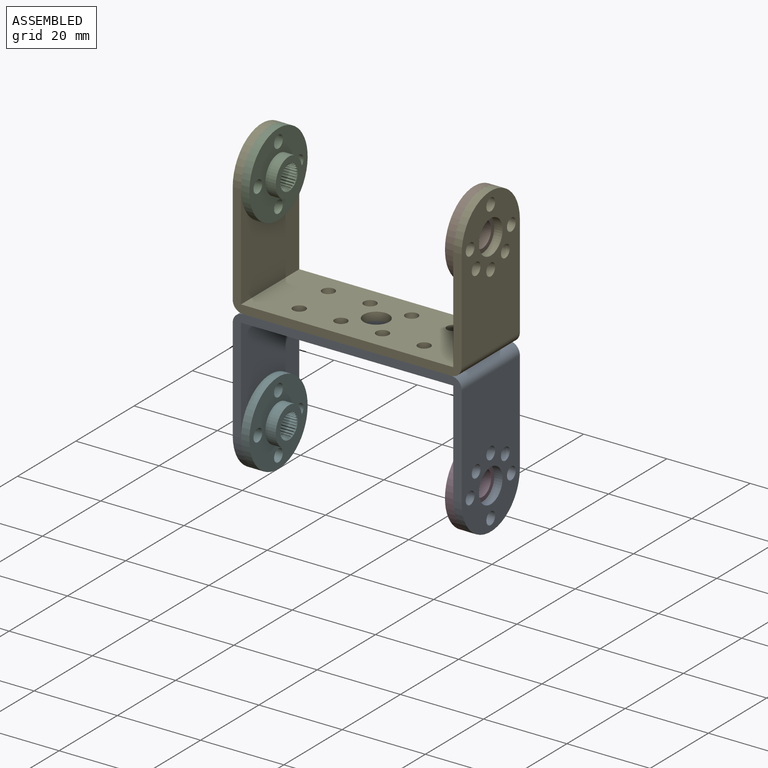
[diagram: assembled view]
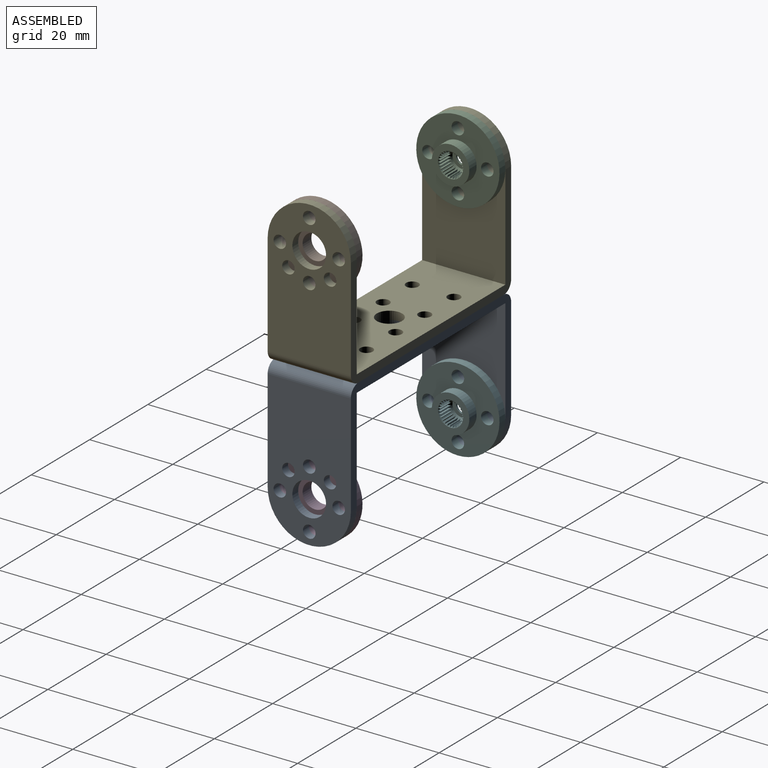
[diagram: assembled view, second angle]
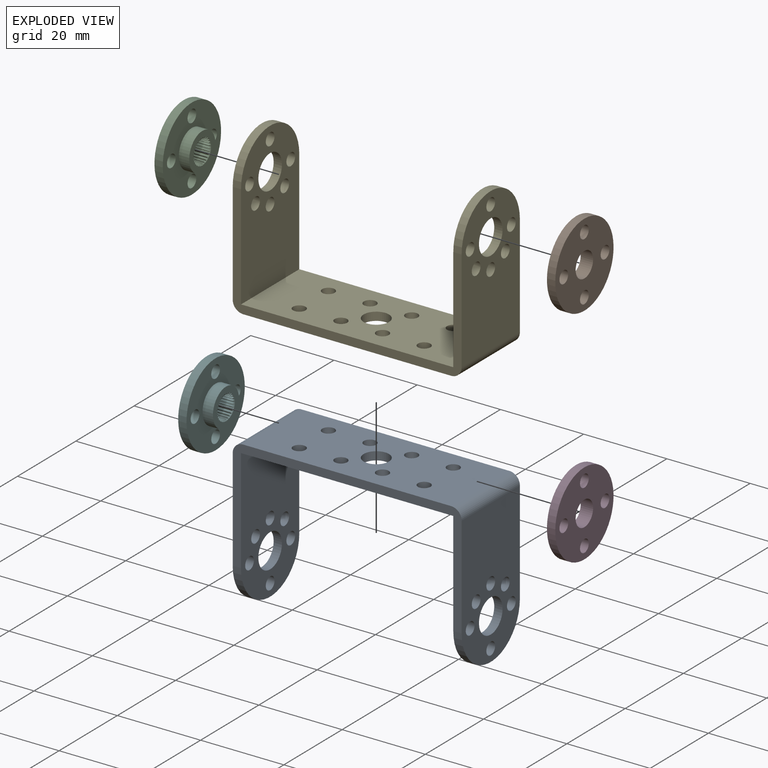
[diagram: exploded view]
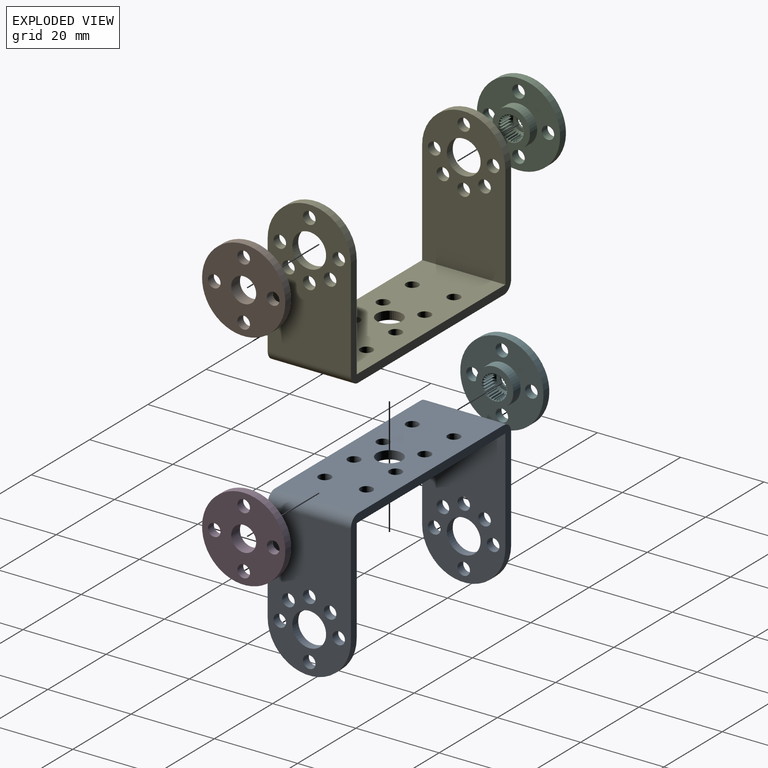
[diagram: exploded view, second angle]
ASSEMBLY  parts=6 mates=5
PART A: 35 faces, bbox 55x20x37 mm
  f0: plane 55x27mm, normal (0,1,0), area 207.3mm2, adj f2,f3,f4,f5,f6,f7,f8,f9
  f1: plane 55x27mm, normal (0,-1,0), area 207.3mm2, adj f2,f3,f4,f5,f6,f7,f8,f9
  f2: plane 35x20mm, normal (-1,0,0), area 563.1mm2, adj f0,f1,f3,f9,f16,f23,f24,f25
  f3: plane 51x20mm, normal (0,0,-1), area 934.2mm2, adj f0,f1,f2,f4,f10,f11,f12,f13
  f4: plane 35x20mm, normal (1,0,0), area 563.1mm2, adj f0,f1,f3,f8,f15,f17,f18,f19
  f5: plane 34.5x20mm, normal (1,0,0), area 553.1mm2, adj f0,f1,f9,f16,f23,f24,f25,f26
  f6: plane 50x20mm, normal (0,0,1), area 914.2mm2, adj f0,f1,f10,f11,f12,f13,f14,f29
  f7: plane 34.5x20mm, normal (-1,0,0), area 553.1mm2, adj f0,f1,f8,f15,f17,f18,f19,f20
  f8: cylinder r=10mm len=20mm, axis (-1,0,0), area 62.8mm2, adj f0,f1,f4,f7
  f9: cylinder r=10mm len=20mm, axis (1,0,0), area 62.8mm2, adj f0,f1,f2,f5
  f10: cylinder r=3.05mm len=6.1mm, axis (0,0,-1), area 38.3mm2, adj f3,f6
  f11: cylinder r=1.5mm len=3mm, axis (0,0,-1), area 18.8mm2, adj f3,f6
  f12: cylinder r=1.5mm len=3mm, axis (0,0,-1), area 18.8mm2, adj f3,f6
  f13: cylinder r=1.5mm len=3mm, axis (0,0,-1), area 18.8mm2, adj f3,f6
  f14: cylinder r=1.5mm len=3mm, axis (0,0,-1), area 18.8mm2, adj f3,f6
  f15: cylinder r=4.05mm len=8.1mm, axis (1,0,0), area 50.9mm2, adj f4,f7
  f16: cylinder r=4.05mm len=8.1mm, axis (1,0,0), area 50.9mm2, adj f2,f5
  f17: cylinder r=1.5mm len=3mm, axis (1,0,0), area 18.8mm2, adj f4,f7
  f18: cylinder r=1.5mm len=3mm, axis (1,0,0), area 18.8mm2, adj f4,f7
  f19: cylinder r=1.5mm len=3mm, axis (1,0,0), area 18.8mm2, adj f4,f7
  f20: cylinder r=1.5mm len=3mm, axis (1,0,0), area 18.8mm2, adj f4,f7
  f21: cylinder r=1.5mm len=3mm, axis (1,0,0), area 18.8mm2, adj f4,f7
  f22: cylinder r=1.5mm len=3mm, axis (1,0,0), area 18.8mm2, adj f4,f7
  f23: cylinder r=1.5mm len=3mm, axis (1,0,0), area 18.8mm2, adj f2,f5
  f24: cylinder r=1.5mm len=3mm, axis (1,0,0), area 18.8mm2, adj f2,f5
  f25: cylinder r=1.5mm len=3mm, axis (1,0,0), area 18.8mm2, adj f2,f5
  f26: cylinder r=1.5mm len=3mm, axis (1,0,0), area 18.8mm2, adj f2,f5
  f27: cylinder r=1.5mm len=3mm, axis (1,0,0), area 18.8mm2, adj f2,f5
  f28: cylinder r=1.5mm len=3mm, axis (1,0,0), area 18.8mm2, adj f2,f5
  f29: cylinder r=2.5mm len=20mm, axis (0,-1,0), area 78.5mm2, adj f0,f1,f5,f6
  f30: cylinder r=2.5mm len=20mm, axis (0,-1,0), area 78.5mm2, adj f0,f1,f6,f7
  f31: cylinder r=1.5mm len=3mm, axis (0,0,-1), area 18.8mm2, adj f3,f6
  f32: cylinder r=1.5mm len=3mm, axis (0,0,-1), area 18.8mm2, adj f3,f6
  f33: cylinder r=1.5mm len=3mm, axis (0,0,-1), area 18.8mm2, adj f3,f6
  f34: cylinder r=1.5mm len=3mm, axis (0,0,-1), area 18.8mm2, adj f3,f6
PART B: 10 faces, bbox 20x20x3 mm
  f0: cylinder r=4.5mm len=9mm, axis (0,0,-1), area 28.3mm2, adj f1,f5
  f1: plane 9x9mm, normal (0,0,-1), area 35.3mm2, adj f0,f2
  f2: cylinder r=3mm len=6mm, axis (0,0,-1), area 56.5mm2, adj f1,f3
  f3: plane 20x20mm, normal (0,0,1), area 257.6mm2, adj f2,f4,f6,f7,f8,f9
  f4: cylinder r=10mm len=20mm, axis (0,0,-1), area 125.7mm2, adj f3,f5
  f5: plane 20x20mm, normal (0,0,-1), area 222.3mm2, adj f0,f4,f6,f7,f8,f9
  f6: cylinder r=1.5mm len=3mm, axis (0,0,-1), area 18.8mm2, adj f3,f5
  f7: cylinder r=1.5mm len=3mm, axis (0,0,-1), area 18.8mm2, adj f3,f5
  f8: cylinder r=1.5mm len=3mm, axis (0,0,-1), area 18.8mm2, adj f3,f5
  f9: cylinder r=1.5mm len=3mm, axis (0,0,-1), area 18.8mm2, adj f3,f5
PART C: 152 faces, bbox 20x20x4.5 mm
  f0: plane 20x20mm, normal (0,0,1), area 278.8mm2, adj f1,f5,f6,f7,f8,f11
  f1: cylinder r=10mm len=20mm, axis (0,0,-1), area 125.7mm2, adj f0,f2
  f2: plane 20x20mm, normal (0,0,-1), area 222.3mm2, adj f1,f3,f5,f6,f7,f8
  f3: cylinder r=4.5mm len=9mm, axis (0,0,-1), area 70.7mm2, adj f2,f4
  f4: plane 9x9mm, normal (0,0,-1), area 35.3mm2, adj f3,f10,f15,f18,f21,f24,f27,f30
  f5: cylinder r=1.5mm len=3mm, axis (0,0,-1), area 18.8mm2, adj f0,f2
  f6: cylinder r=1.5mm len=3mm, axis (0,0,-1), area 18.8mm2, adj f0,f2
  f7: cylinder r=1.5mm len=3mm, axis (0,0,-1), area 18.8mm2, adj f0,f2
  f8: cylinder r=1.5mm len=3mm, axis (0,0,-1), area 18.8mm2, adj f0,f2
  f9: cone r=3mm half-angle=45deg, axis (0,0,-1), area 12.1mm2, adj f10,f12,f13,f14,f15,f16,f17,f18
  f10: cylinder r=3mm len=3.35mm, axis (0,0,-1), area 1mm2, adj f4,f9,f13,f14
  f11: cylinder r=1.5mm len=3mm, axis (0,0,-1), area 4.7mm2, adj f0,f12
  f12: plane 4.7x4.7mm, normal (0,0,-1), area 10.3mm2, adj f9,f11
  f13: plane 3.76x0.42mm, normal (0.23,0.97,0), area 1.4mm2, adj f9,f10,f96,f97
  f14: plane 3.76x0.42mm, normal (0.23,-0.97,0), area 1.4mm2, adj f9,f10,f150,f151
  f15: cylinder r=3mm len=3.35mm, axis (0,0,-1), area 1mm2, adj f4,f9,f16,f17
  f16: plane 3.76x0.39mm, normal (0.45,0.9,0), area 1.4mm2, adj f9,f15,f150,f151
  f17: plane 3.76x0.43mm, normal (0.01,-1,0), area 1.4mm2, adj f9,f15,f148,f149
  f18: cylinder r=3mm len=3.35mm, axis (0,0,-1), area 1mm2, adj f4,f9,f19,f20
  f19: plane 3.76x0.33mm, normal (0.63,0.77,0), area 1.4mm2, adj f9,f18,f148,f149
  f20: plane 3.76x0.42mm, normal (-0.21,-0.98,0), area 1.4mm2, adj f9,f18,f146,f147
  f21: cylinder r=3mm len=3.35mm, axis (0,0,-1), area 1mm2, adj f4,f9,f22,f23
  f22: plane 3.76x0.34mm, normal (0.79,0.61,0), area 1.4mm2, adj f9,f21,f146,f147
  f23: plane 3.76x0.39mm, normal (-0.42,-0.91,0), area 1.4mm2, adj f9,f21,f144,f145
  f24: cylinder r=3mm len=3.35mm, axis (0,0,-1), area 1mm2, adj f4,f9,f25,f26
  f25: plane 3.76x0.39mm, normal (0.91,0.42,0), area 1.4mm2, adj f9,f24,f144,f145
  f26: plane 3.76x0.34mm, normal (-0.61,-0.79,0), area 1.4mm2, adj f9,f24,f142,f143
  f27: cylinder r=3mm len=3.35mm, axis (0,0,-1), area 1mm2, adj f4,f9,f28,f29
  f28: plane 3.76x0.42mm, normal (0.98,0.21,0), area 1.4mm2, adj f9,f27,f142,f143
  f29: plane 3.76x0.33mm, normal (-0.77,-0.63,0), area 1.4mm2, adj f9,f27,f140,f141
  f30: cylinder r=3mm len=3.35mm, axis (0,0,-1), area 1mm2, adj f4,f9,f31,f32
  f31: plane 3.76x0.43mm, normal (1,-0.01,0), area 1.4mm2, adj f9,f30,f140,f141
  f32: plane 3.76x0.39mm, normal (-0.9,-0.45,0), area 1.4mm2, adj f9,f30,f138,f139
  f33: cylinder r=3mm len=3.35mm, axis (0,0,-1), area 1mm2, adj f4,f9,f34,f35
  f34: plane 3.76x0.42mm, normal (0.97,-0.23,0), area 1.4mm2, adj f9,f33,f138,f139
  f35: plane 3.76x0.42mm, normal (-0.97,-0.23,0), area 1.4mm2, adj f9,f33,f136,f137
  f36: cylinder r=3mm len=3.35mm, axis (0,0,-1), area 1mm2, adj f4,f9,f37,f38
  f37: plane 3.76x0.39mm, normal (0.9,-0.45,0), area 1.4mm2, adj f9,f36,f136,f137
  f38: plane 3.76x0.43mm, normal (-1,-0.01,0), area 1.4mm2, adj f9,f36,f134,f135
  f39: cylinder r=3mm len=3.35mm, axis (0,0,-1), area 1mm2, adj f4,f9,f40,f41
  f40: plane 3.76x0.33mm, normal (0.77,-0.63,0), area 1.4mm2, adj f9,f39,f134,f135
  f41: plane 3.76x0.42mm, normal (-0.98,0.21,0), area 1.4mm2, adj f9,f39,f132,f133
  f42: cylinder r=3mm len=3.35mm, axis (0,0,-1), area 1mm2, adj f4,f9,f43,f44
  f43: plane 3.76x0.34mm, normal (0.61,-0.79,0), area 1.4mm2, adj f9,f42,f132,f133
  f44: plane 3.76x0.39mm, normal (-0.91,0.42,0), area 1.4mm2, adj f9,f42,f130,f131
  f45: cylinder r=3mm len=3.35mm, axis (0,0,-1), area 1mm2, adj f4,f9,f46,f47
  f46: plane 3.76x0.39mm, normal (0.42,-0.91,0), area 1.4mm2, adj f9,f45,f130,f131
  f47: plane 3.76x0.34mm, normal (-0.79,0.61,0), area 1.4mm2, adj f9,f45,f128,f129
  f48: cylinder r=3mm len=3.35mm, axis (0,0,-1), area 1mm2, adj f4,f9,f49,f50
  f49: plane 3.76x0.42mm, normal (0.21,-0.98,0), area 1.4mm2, adj f9,f48,f128,f129
  f50: plane 3.76x0.33mm, normal (-0.63,0.77,0), area 1.4mm2, adj f9,f48,f126,f127
  f51: cylinder r=3mm len=3.35mm, axis (0,0,-1), area 1mm2, adj f4,f9,f52,f53
  f52: plane 3.76x0.43mm, normal (-0.01,-1,0), area 1.4mm2, adj f9,f51,f126,f127
  f53: plane 3.76x0.39mm, normal (-0.45,0.9,0), area 1.4mm2, adj f9,f51,f124,f125
  f54: cylinder r=3mm len=3.35mm, axis (0,0,-1), area 1mm2, adj f4,f9,f55,f56
  f55: plane 3.76x0.42mm, normal (-0.23,-0.97,0), area 1.4mm2, adj f9,f54,f124,f125
  f56: plane 3.76x0.42mm, normal (-0.23,0.97,0), area 1.4mm2, adj f9,f54,f122,f123
  f57: cylinder r=3mm len=3.35mm, axis (0,0,-1), area 1mm2, adj f4,f9,f58,f59
  f58: plane 3.76x0.39mm, normal (-0.45,-0.9,0), area 1.4mm2, adj f9,f57,f122,f123
  f59: plane 3.76x0.43mm, normal (-0.01,1,0), area 1.4mm2, adj f9,f57,f120,f121
  f60: cylinder r=3mm len=3.35mm, axis (0,0,-1), area 1mm2, adj f4,f9,f61,f62
  f61: plane 3.76x0.33mm, normal (-0.63,-0.77,0), area 1.4mm2, adj f9,f60,f120,f121
  f62: plane 3.76x0.42mm, normal (0.21,0.98,0), area 1.4mm2, adj f9,f60,f118,f119
  f63: cylinder r=3mm len=3.35mm, axis (0,0,-1), area 1mm2, adj f4,f9,f64,f65
  f64: plane 3.76x0.34mm, normal (-0.79,-0.61,0), area 1.4mm2, adj f9,f63,f118,f119
  f65: plane 3.76x0.39mm, normal (0.42,0.91,0), area 1.4mm2, adj f9,f63,f116,f117
  f66: cylinder r=3mm len=3.35mm, axis (0,0,-1), area 1mm2, adj f4,f9,f67,f68
  f67: plane 3.76x0.39mm, normal (-0.91,-0.42,0), area 1.4mm2, adj f9,f66,f116,f117
  f68: plane 3.76x0.34mm, normal (0.61,0.79,0), area 1.4mm2, adj f9,f66,f114,f115
  f69: cylinder r=3mm len=3.35mm, axis (0,0,-1), area 1mm2, adj f4,f9,f70,f71
  f70: plane 3.76x0.42mm, normal (-0.98,-0.21,0), area 1.4mm2, adj f9,f69,f114,f115
  f71: plane 3.76x0.33mm, normal (0.77,0.63,0), area 1.4mm2, adj f9,f69,f112,f113
  f72: cylinder r=3mm len=3.35mm, axis (0,0,-1), area 1mm2, adj f4,f9,f73,f74
  f73: plane 3.76x0.43mm, normal (-1,0.01,0), area 1.4mm2, adj f9,f72,f112,f113
  f74: plane 3.76x0.39mm, normal (0.9,0.45,0), area 1.4mm2, adj f9,f72,f110,f111
  f75: cylinder r=3mm len=3.35mm, axis (0,0,-1), area 1mm2, adj f4,f9,f76,f77
  f76: plane 3.76x0.42mm, normal (-0.97,0.23,0), area 1.4mm2, adj f9,f75,f110,f111
  f77: plane 3.76x0.42mm, normal (0.97,0.23,0), area 1.4mm2, adj f9,f75,f108,f109
  f78: cylinder r=3mm len=3.35mm, axis (0,0,-1), area 1mm2, adj f4,f9,f79,f80
  f79: plane 3.76x0.39mm, normal (-0.9,0.45,0), area 1.4mm2, adj f9,f78,f108,f109
  f80: plane 3.76x0.43mm, normal (1,0.01,0), area 1.4mm2, adj f9,f78,f106,f107
  f81: cylinder r=3mm len=3.35mm, axis (0,0,-1), area 1mm2, adj f4,f9,f82,f83
  f82: plane 3.76x0.33mm, normal (-0.77,0.63,0), area 1.4mm2, adj f9,f81,f106,f107
  f83: plane 3.76x0.42mm, normal (0.98,-0.21,0), area 1.4mm2, adj f9,f81,f104,f105
  f84: cylinder r=3mm len=3.35mm, axis (0,0,-1), area 1mm2, adj f4,f9,f85,f86
  f85: plane 3.76x0.34mm, normal (-0.61,0.79,0), area 1.4mm2, adj f9,f84,f104,f105
  f86: plane 3.76x0.39mm, normal (0.91,-0.42,0), area 1.4mm2, adj f9,f84,f102,f103
  f87: cylinder r=3mm len=3.35mm, axis (0,0,-1), area 1mm2, adj f4,f9,f88,f89
  f88: plane 3.76x0.39mm, normal (-0.42,0.91,0), area 1.4mm2, adj f9,f87,f102,f103
  f89: plane 3.76x0.34mm, normal (0.79,-0.61,0), area 1.4mm2, adj f9,f87,f100,f101
  f90: cylinder r=3mm len=3.35mm, axis (0,0,-1), area 1mm2, adj f4,f9,f91,f92
  f91: plane 3.76x0.42mm, normal (-0.21,0.98,0), area 1.4mm2, adj f9,f90,f100,f101
  f92: plane 3.76x0.33mm, normal (0.63,-0.77,0), area 1.4mm2, adj f9,f90,f98,f99
  f93: cylinder r=3mm len=3.35mm, axis (0,0,-1), area 1mm2, adj f4,f9,f94,f95
  f94: plane 3.76x0.43mm, normal (0.01,1,0), area 1.4mm2, adj f9,f93,f98,f99
  f95: plane 3.76x0.39mm, normal (0.45,-0.9,0), area 1.4mm2, adj f9,f93,f96,f97
  f96: cone r=2.6mm half-angle=60deg, axis (0,0,-1), area 0.1mm2, adj f4,f13,f95,f97
  f97: cylinder r=2.6mm len=3.52mm, axis (0,0,-1), area 0.3mm2, adj f9,f13,f95,f96
  f98: cone r=2.6mm half-angle=60deg, axis (0,0,-1), area 0.1mm2, adj f4,f92,f94,f99
  f99: cylinder r=2.6mm len=3.52mm, axis (0,0,-1), area 0.3mm2, adj f9,f92,f94,f98
  f100: cone r=2.6mm half-angle=60deg, axis (0,0,-1), area 0.1mm2, adj f4,f89,f91,f101
  f101: cylinder r=2.6mm len=3.52mm, axis (0,0,-1), area 0.3mm2, adj f9,f89,f91,f100
  f102: cone r=2.6mm half-angle=60deg, axis (0,0,-1), area 0.1mm2, adj f4,f86,f88,f103
  f103: cylinder r=2.6mm len=3.52mm, axis (0,0,-1), area 0.3mm2, adj f9,f86,f88,f102
  f104: cone r=2.6mm half-angle=60deg, axis (0,0,-1), area 0.1mm2, adj f4,f83,f85,f105
  f105: cylinder r=2.6mm len=3.52mm, axis (0,0,-1), area 0.3mm2, adj f9,f83,f85,f104
  f106: cone r=2.6mm half-angle=60deg, axis (0,0,-1), area 0.1mm2, adj f4,f80,f82,f107
  f107: cylinder r=2.6mm len=3.52mm, axis (0,0,-1), area 0.3mm2, adj f9,f80,f82,f106
  f108: cone r=2.6mm half-angle=60deg, axis (0,0,-1), area 0.1mm2, adj f4,f77,f79,f109
  f109: cylinder r=2.6mm len=3.52mm, axis (0,0,-1), area 0.3mm2, adj f9,f77,f79,f108
  f110: cone r=2.6mm half-angle=60deg, axis (0,0,-1), area 0.1mm2, adj f4,f74,f76,f111
  f111: cylinder r=2.6mm len=3.52mm, axis (0,0,-1), area 0.3mm2, adj f9,f74,f76,f110
  f112: cone r=2.6mm half-angle=60deg, axis (0,0,-1), area 0.1mm2, adj f4,f71,f73,f113
  f113: cylinder r=2.6mm len=3.52mm, axis (0,0,-1), area 0.3mm2, adj f9,f71,f73,f112
  f114: cone r=2.6mm half-angle=60deg, axis (0,0,-1), area 0.1mm2, adj f4,f68,f70,f115
  f115: cylinder r=2.6mm len=3.52mm, axis (0,0,-1), area 0.3mm2, adj f9,f68,f70,f114
  f116: cone r=2.6mm half-angle=60deg, axis (0,0,-1), area 0.1mm2, adj f4,f65,f67,f117
  f117: cylinder r=2.6mm len=3.52mm, axis (0,0,-1), area 0.3mm2, adj f9,f65,f67,f116
  f118: cone r=2.6mm half-angle=60deg, axis (0,0,-1), area 0.1mm2, adj f4,f62,f64,f119
  f119: cylinder r=2.6mm len=3.52mm, axis (0,0,-1), area 0.3mm2, adj f9,f62,f64,f118
  f120: cone r=2.6mm half-angle=60deg, axis (0,0,-1), area 0.1mm2, adj f4,f59,f61,f121
  f121: cylinder r=2.6mm len=3.52mm, axis (0,0,-1), area 0.3mm2, adj f9,f59,f61,f120
  f122: cone r=2.6mm half-angle=60deg, axis (0,0,-1), area 0.1mm2, adj f4,f56,f58,f123
  f123: cylinder r=2.6mm len=3.52mm, axis (0,0,-1), area 0.3mm2, adj f9,f56,f58,f122
  f124: cone r=2.6mm half-angle=60deg, axis (0,0,-1), area 0.1mm2, adj f4,f53,f55,f125
  f125: cylinder r=2.6mm len=3.52mm, axis (0,0,-1), area 0.3mm2, adj f9,f53,f55,f124
  f126: cone r=2.6mm half-angle=60deg, axis (0,0,-1), area 0.1mm2, adj f4,f50,f52,f127
  f127: cylinder r=2.6mm len=3.52mm, axis (0,0,-1), area 0.3mm2, adj f9,f50,f52,f126
  f128: cone r=2.6mm half-angle=60deg, axis (0,0,-1), area 0.1mm2, adj f4,f47,f49,f129
  f129: cylinder r=2.6mm len=3.52mm, axis (0,0,-1), area 0.3mm2, adj f9,f47,f49,f128
  f130: cone r=2.6mm half-angle=60deg, axis (0,0,-1), area 0.1mm2, adj f4,f44,f46,f131
  f131: cylinder r=2.6mm len=3.52mm, axis (0,0,-1), area 0.3mm2, adj f9,f44,f46,f130
  f132: cone r=2.6mm half-angle=60deg, axis (0,0,-1), area 0.1mm2, adj f4,f41,f43,f133
  f133: cylinder r=2.6mm len=3.52mm, axis (0,0,-1), area 0.3mm2, adj f9,f41,f43,f132
  f134: cone r=2.6mm half-angle=60deg, axis (0,0,-1), area 0.1mm2, adj f4,f38,f40,f135
  f135: cylinder r=2.6mm len=3.52mm, axis (0,0,-1), area 0.3mm2, adj f9,f38,f40,f134
  f136: cone r=2.6mm half-angle=60deg, axis (0,0,-1), area 0.1mm2, adj f4,f35,f37,f137
  f137: cylinder r=2.6mm len=3.52mm, axis (0,0,-1), area 0.3mm2, adj f9,f35,f37,f136
  f138: cone r=2.6mm half-angle=60deg, axis (0,0,-1), area 0.1mm2, adj f4,f32,f34,f139
  f139: cylinder r=2.6mm len=3.52mm, axis (0,0,-1), area 0.3mm2, adj f9,f32,f34,f138
  f140: cone r=2.6mm half-angle=60deg, axis (0,0,-1), area 0.1mm2, adj f4,f29,f31,f141
  f141: cylinder r=2.6mm len=3.52mm, axis (0,0,-1), area 0.3mm2, adj f9,f29,f31,f140
  f142: cone r=2.6mm half-angle=60deg, axis (0,0,-1), area 0.1mm2, adj f4,f26,f28,f143
  f143: cylinder r=2.6mm len=3.52mm, axis (0,0,-1), area 0.3mm2, adj f9,f26,f28,f142
  f144: cone r=2.6mm half-angle=60deg, axis (0,0,-1), area 0.1mm2, adj f4,f23,f25,f145
  f145: cylinder r=2.6mm len=3.52mm, axis (0,0,-1), area 0.3mm2, adj f9,f23,f25,f144
  f146: cone r=2.6mm half-angle=60deg, axis (0,0,-1), area 0.1mm2, adj f4,f20,f22,f147
  f147: cylinder r=2.6mm len=3.52mm, axis (0,0,-1), area 0.3mm2, adj f9,f20,f22,f146
  f148: cone r=2.6mm half-angle=60deg, axis (0,0,-1), area 0.1mm2, adj f4,f17,f19,f149
  f149: cylinder r=2.6mm len=3.52mm, axis (0,0,-1), area 0.3mm2, adj f9,f17,f19,f148
  f150: cylinder r=2.6mm len=3.52mm, axis (0,0,-1), area 0.3mm2, adj f9,f14,f16,f151
  f151: cone r=2.6mm half-angle=60deg, axis (0,0,-1), area 0.1mm2, adj f4,f14,f16,f150
PART D: same geometry as B
PART E: same geometry as A
PART F: same geometry as C
PLACE A t=(0.12,0.14,-38.78)mm fixed
PLACE B rot(axis=(0,1,0),90deg) t=(5.62,0.14,25.22)mm
PLACE C rot(axis=(0,-1,0),90deg) t=(-20.88,0.14,25.22)mm
PLACE D rot(axis=(0,1,0),90deg) t=(5.62,0.14,-28.78)mm
PLACE E rot(axis=(1,0,0),180deg) t=(0.12,0.14,35.22)mm
PLACE F rot(axis=(0,-1,0),90deg) t=(-20.88,0.14,-28.78)mm
MATE fastened E.f15 <-> C.f1  axis (1,0,0) through (-25.38,0.14,25.22)mm
MATE fastened A.f10 <-> E.f10  axis (0,0,1) through (0.12,0.14,-1.78)mm
MATE fastened A.f8 <-> F.f1  axis (1,0,0) through (-25.38,0.14,-28.78)mm
MATE fastened E.f15 <-> B.f0  axis (-1,0,0) through (25.62,0.14,25.22)mm
MATE fastened D.f0 <-> A.f9  axis (1,0,0) through (25.62,0.14,-28.78)mm
